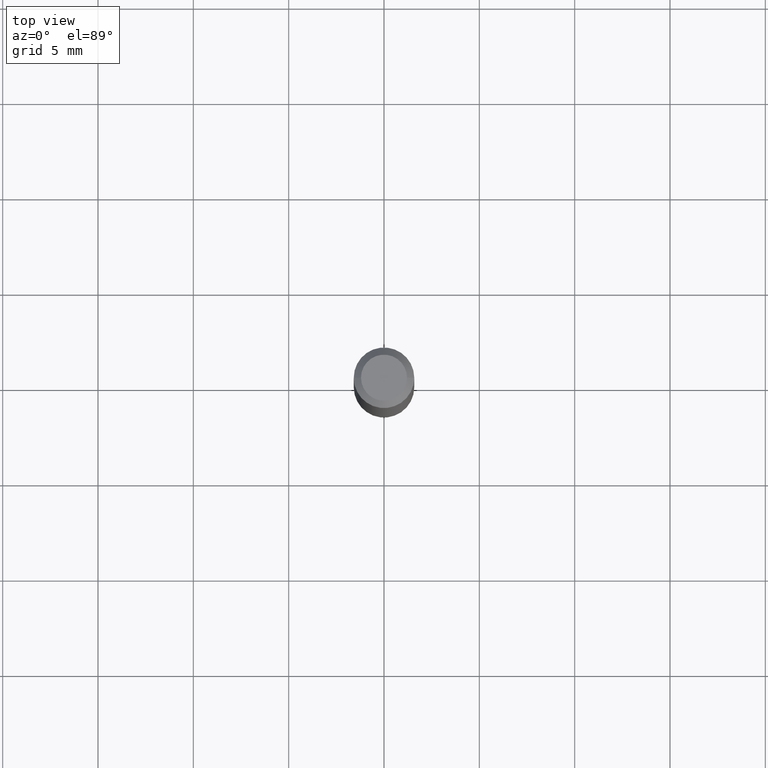
[diagram: clean part render]
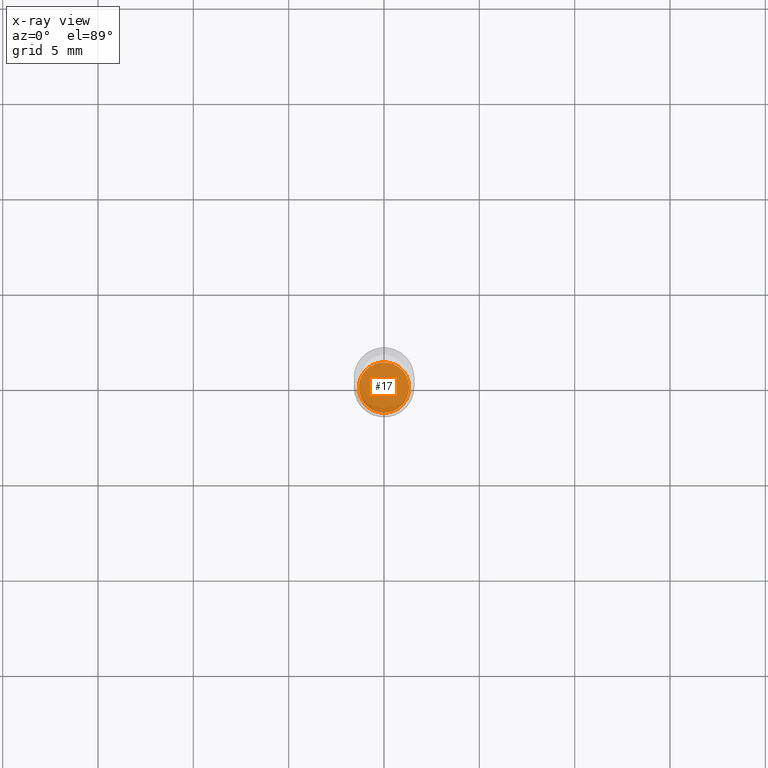
[diagram: x-ray — body ghosted, one internal face saturated and labeled with its STEP entity id]
A machine part, top view, then the same camera in x-ray: the body is ghosted and one INTERNAL B-rep face — a face not visible from any outside direction — is saturated and labeled: STEP entity #17.
In plain terms, the highlighted planar face has unit normal (-0, 0, 1).
Its self-contained STEP definition (entity closure, byte-faithful):
#17 = ADVANCED_FACE ( 'NONE', ( #477 ), #242, .F. ) ;
#52 = CARTESIAN_POINT ( 'NONE',  ( 0.05200000000000008782, -4.500519445768814483E-15, -1.185000000000000053 ) ) ;
#62 = VERTEX_POINT ( 'NONE', #490 ) ;
#83 = EDGE_CURVE ( 'NONE', #286, #62, #462, .T. ) ;
#88 = DIRECTION ( 'NONE',  ( -2.445468806185136597E-29, 3.491481338843145583E-15, 1.000000000000000000 ) ) ;
#104 = CARTESIAN_POINT ( 'NONE',  ( 2.897880535329386822E-29, -4.137405386529127541E-15, -1.185000000000000053 ) ) ;
#116 = AXIS2_PLACEMENT_3D ( 'NONE', #285, #406, #144 ) ;
#144 = DIRECTION ( 'NONE',  ( 1.000000000000000000, -6.982962677686274599E-15, 0.000000000000000000 ) ) ;
#161 = ORIENTED_EDGE ( 'NONE', *, *, #465, .F. ) ;
#166 = DIRECTION ( 'NONE',  ( -2.438088387897960049E-29, 3.491481338843145188E-15, 1.000000000000000000 ) ) ;
#194 = CIRCLE ( 'NONE', #479, 0.05200000000000008782 ) ;
#242 = PLANE ( 'NONE',  #423 ) ;
#285 = CARTESIAN_POINT ( 'NONE',  ( 2.897880535329386822E-29, -4.137405386529127541E-15, -1.185000000000000053 ) ) ;
#286 = VERTEX_POINT ( 'NONE', #52 ) ;
#289 = ORIENTED_EDGE ( 'NONE', *, *, #83, .F. ) ;
#355 = EDGE_LOOP ( 'NONE', ( #289, #161 ) ) ;
#403 = CARTESIAN_POINT ( 'NONE',  ( 2.897880535329386822E-29, -4.137405386529127541E-15, -1.185000000000000053 ) ) ;
#406 = DIRECTION ( 'NONE',  ( -2.445468806185136597E-29, 3.491481338843145583E-15, 1.000000000000000000 ) ) ;
#423 = AXIS2_PLACEMENT_3D ( 'NONE', #403, #166, #468 ) ;
#454 = DIRECTION ( 'NONE',  ( 1.000000000000000000, -6.982962677686274599E-15, 0.000000000000000000 ) ) ;
#462 = CIRCLE ( 'NONE', #116, 0.05200000000000008782 ) ;
#465 = EDGE_CURVE ( 'NONE', #62, #286, #194, .T. ) ;
#468 = DIRECTION ( 'NONE',  ( 1.000000000000000000, -6.982962677686265922E-15, 4.876176775795935793E-29 ) ) ;
#477 = FACE_OUTER_BOUND ( 'NONE', #355, .T. ) ;
#479 = AXIS2_PLACEMENT_3D ( 'NONE', #104, #88, #454 ) ;
#490 = CARTESIAN_POINT ( 'NONE',  ( -0.05200000000000008782, -3.765273936759763915E-15, -1.185000000000000053 ) ) ;